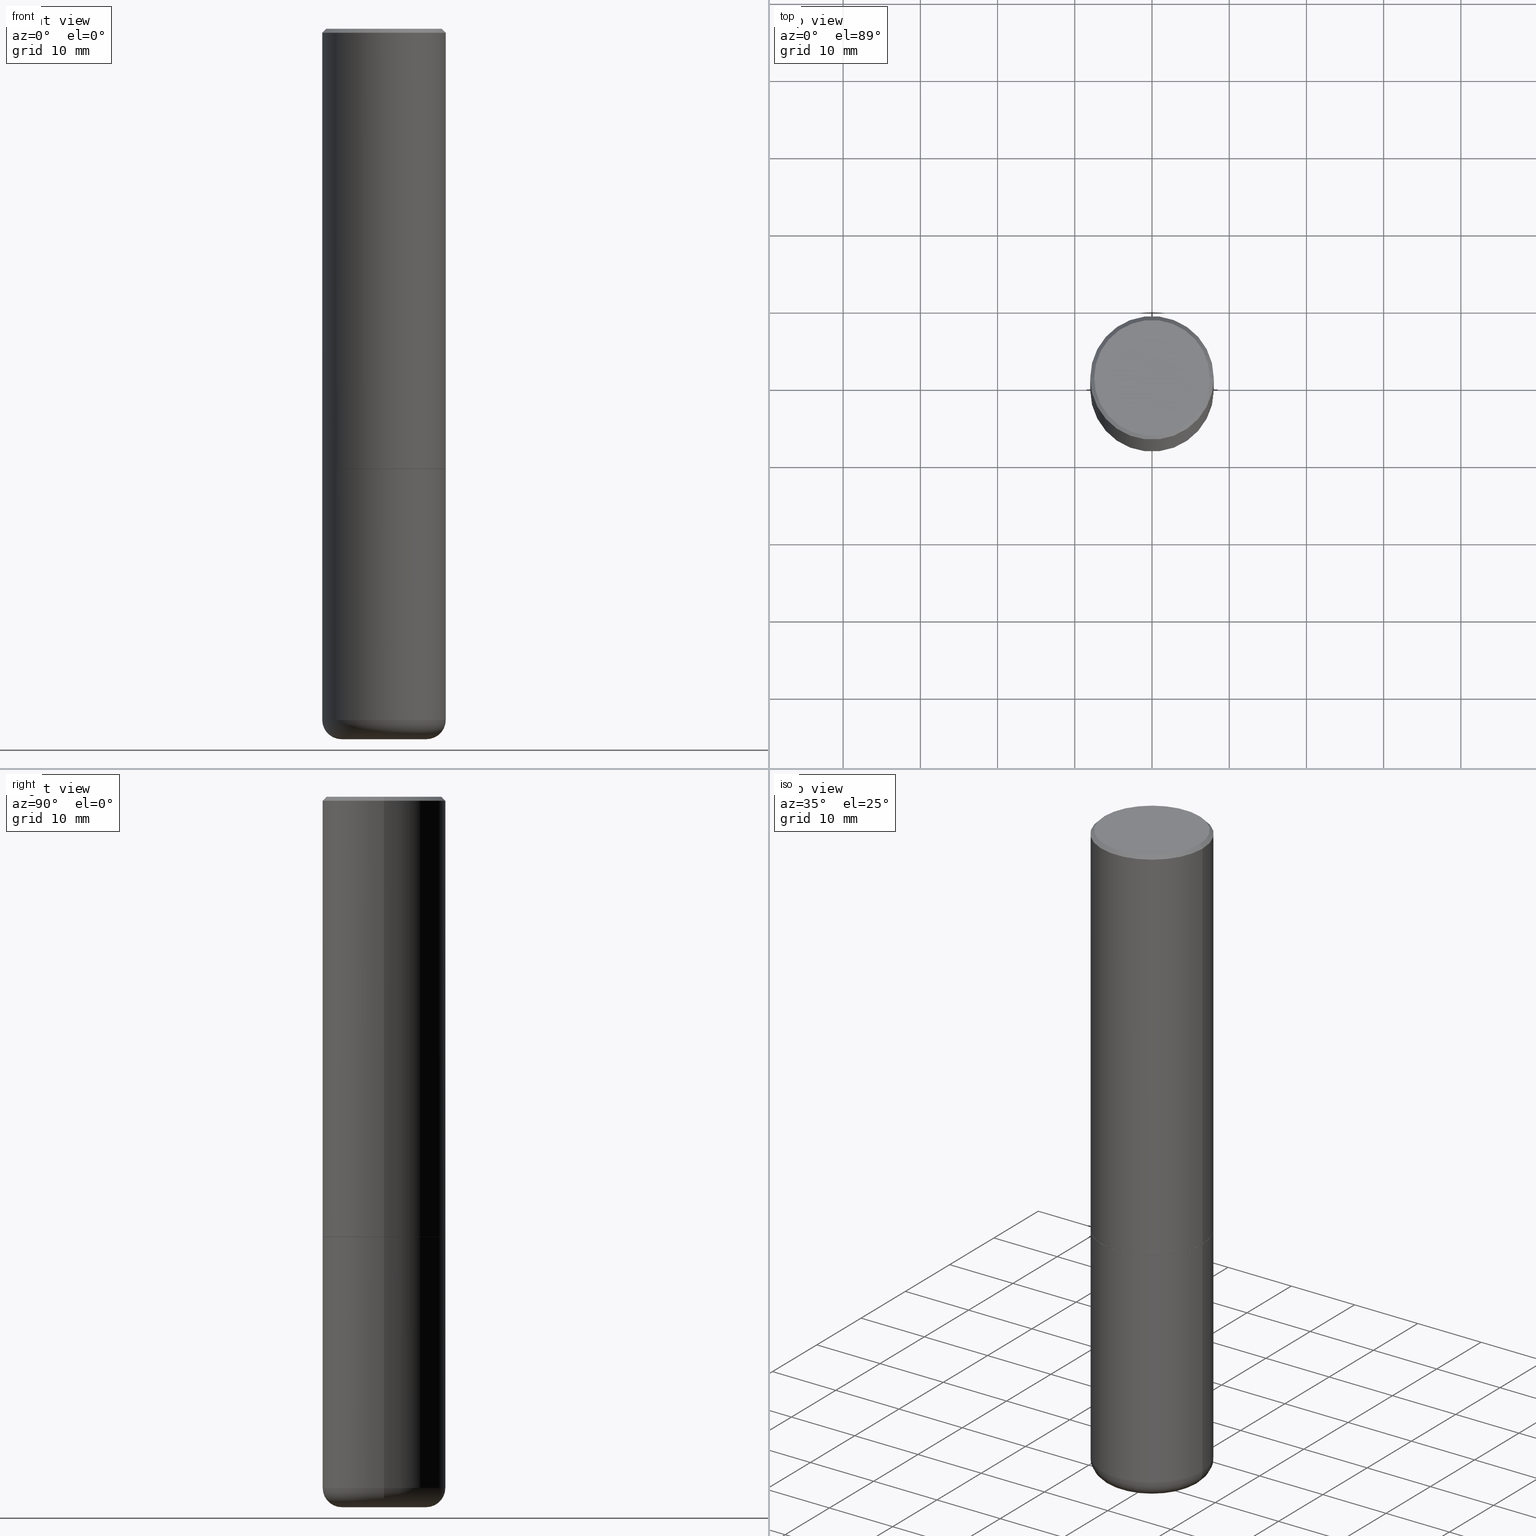
[diagram: canonical four-view strip — front | top / right | iso, engineering-drawing reading convention]
A machine part, canonical four-view strip (front | top / right | iso — engineering-drawing reading convention). The complete STEP part file that produces these views, byte-faithful:
ISO-10303-21;
HEADER;
FILE_DESCRIPTION (( 'STEP AP203' ),
    '1' );
FILE_NAME ('47036.STEP',
    '2024-03-05T13:42:26',
    ( '' ),
    ( '' ),
    'SwSTEP 2.0',
    'SolidWorks 2023',
    '' );
FILE_SCHEMA (( 'CONFIG_CONTROL_DESIGN' ));
ENDSEC;

DATA;
#1 = APPROVAL_DATE_TIME ( #384, #109 ) ;
#2 = CARTESIAN_POINT ( 'NONE',  ( 5.487632001079445967E-29, -7.834884124364017250E-15, -2.243999999999999773 ) ) ;
#3 = ORIENTED_EDGE ( 'NONE', *, *, #69, .T. ) ;
#4 = CYLINDRICAL_SURFACE ( 'NONE', #30, 0.3149500000000001743 ) ;
#5 = CC_DESIGN_APPROVAL ( #19, ( #74 ) ) ;
#6 = VERTEX_POINT ( 'NONE', #367 ) ;
#7 = EDGE_CURVE ( 'NONE', #135, #95, #248, .T. ) ;
#8 = CARTESIAN_POINT ( 'NONE',  ( -0.3149500000000002853, -1.712756788624580222E-15, -2.242999999999999883 ) ) ;
#9 = LINE ( 'NONE', #139, #37 ) ;
#10 = AXIS2_PLACEMENT_3D ( 'NONE', #270, #41, #399 ) ;
#11 = LINE ( 'NONE', #16, #191 ) ;
#12 = SECURITY_CLASSIFICATION ( '', '', #340 ) ;
#13 = DIMENSIONAL_EXPONENTS ( 1.000000000000000000, 0.000000000000000000, 0.000000000000000000, 0.000000000000000000, 0.000000000000000000, 0.000000000000000000, 0.000000000000000000 ) ;
#14 = DIRECTION ( 'NONE',  ( -0.7071067811865466846, 2.468850131082247989E-15, -0.7071067811865483499 ) ) ;
#15 = ADVANCED_FACE ( 'NONE', ( #47 ), #271, .T. ) ;
#16 = CARTESIAN_POINT ( 'NONE',  ( -0.3149500000000001743, 2.237854346276436774E-15, -1.549218606675783237E-29 ) ) ;
#17 = AXIS2_PLACEMENT_3D ( 'NONE', #417, #57, #281 ) ;
#18 = PERSON_AND_ORGANIZATION_ROLE ( 'creator' ) ;
#19 = APPROVAL ( #216, 'UNSPECIFIED' ) ;
#20 = DIRECTION ( 'NONE',  ( 7.105427357601001859E-15, 1.000000000000000000, -3.491481338843145583E-15 ) ) ;
#21 = FACE_OUTER_BOUND ( 'NONE', #100, .T. ) ;
#22 = CONICAL_SURFACE ( 'NONE', #304, 0.3149500000000000077, 0.7853981633974471688 ) ;
#23 = CALENDAR_DATE ( 2024, 5, 3 ) ;
#24 = DIRECTION ( 'NONE',  ( -1.000000000000000000, 6.982962677686266711E-15, 0.000000000000000000 ) ) ;
#25 = PRODUCT_DEFINITION ( 'UNKNOWN', '', #74, #290 ) ;
#26 = DIRECTION ( 'NONE',  ( -6.982962677686266711E-15, -1.000000000000000000, 3.491481338843145583E-15 ) ) ;
#27 = EDGE_CURVE ( 'NONE', #92, #287, #11, .T. ) ;
#28 = DIRECTION ( 'NONE',  ( 0.7071067811866199593, -2.468850131083015945E-15, 0.7071067811864750752 ) ) ;
#29 = VERTEX_POINT ( 'NONE', #208 ) ;
#30 = AXIS2_PLACEMENT_3D ( 'NONE', #229, #225, #353 ) ;
#31 = DIRECTION ( 'NONE',  ( -2.445468806185136597E-29, 3.491481338843145583E-15, 1.000000000000000000 ) ) ;
#32 = ORIENTED_EDGE ( 'NONE', *, *, #27, .T. ) ;
#33 = DIRECTION ( 'NONE',  ( -2.445468806185136877E-29, 3.491481338843145188E-15, 1.000000000000000000 ) ) ;
#34 = EDGE_LOOP ( 'NONE', ( #90, #368, #381, #157 ) ) ;
#35 = CARTESIAN_POINT ( 'NONE',  ( -0.3149500000000000077, 2.129454468560426573E-15, -0.02000000000000006981 ) ) ;
#36 = ORIENTED_EDGE ( 'NONE', *, *, #300, .T. ) ;
#37 = VECTOR ( 'NONE', #176, 39.37007874015748143 ) ;
#38 = AXIS2_PLACEMENT_3D ( 'NONE', #155, #189, #165 ) ;
#39 = ORIENTED_EDGE ( 'NONE', *, *, #293, .F. ) ;
#40 = ORIENTED_EDGE ( 'NONE', *, *, #282, .F. ) ;
#41 = DIRECTION ( 'NONE',  ( -2.445468806185136597E-29, 3.491481338843145583E-15, 1.000000000000000000 ) ) ;
#42 = VECTOR ( 'NONE', #221, 39.37007874015748143 ) ;
#43 = CARTESIAN_POINT ( 'NONE',  ( -0.3149500000000000077, 2.129454468560426573E-15, -0.02000000000000006981 ) ) ;
#44 = CIRCLE ( 'NONE', #364, 0.09839999999999986258 ) ;
#45 = ORIENTED_EDGE ( 'NONE', *, *, #363, .F. ) ;
#46 = ADVANCED_FACE ( 'NONE', ( #206 ), #22, .T. ) ;
#47 = FACE_OUTER_BOUND ( 'NONE', #262, .T. ) ;
#48 = PRODUCT ( '47036', '47036', '', ( #88 ) ) ;
#49 = CARTESIAN_POINT ( 'NONE',  ( 5.487632001079445967E-29, -7.834884124364017250E-15, -2.243999999999999773 ) ) ;
#50 = ORGANIZATION ( 'UNSPECIFIED', 'UNSPECIFIED', '' ) ;
#51 = PERSON_AND_ORGANIZATION_ROLE ( 'classification_officer' ) ;
#52 = CARTESIAN_POINT ( 'NONE',  ( -0.3139500000000000068, -5.604135205445183851E-15, -2.243999999999999773 ) ) ;
#53 = LINE ( 'NONE', #52, #42 ) ;
#54 = CALENDAR_DATE ( 2024, 5, 3 ) ;
#55 = CIRCLE ( 'NONE', #140, 0.3149500000000000077 ) ;
#56 = DIRECTION ( 'NONE',  ( -1.000000000000000000, 6.982962677686265922E-15, -4.876176775795935793E-29 ) ) ;
#57 = DIRECTION ( 'NONE',  ( -2.445468806185136597E-29, 3.491481338843145583E-15, 1.000000000000000000 ) ) ;
#58 = CC_DESIGN_PERSON_AND_ORGANIZATION_ASSIGNMENT ( #231, #199, ( #25 ) ) ;
#59 = PERSON_AND_ORGANIZATION ( #407, #50 ) ;
#60 = DIRECTION ( 'NONE',  ( 1.000000000000000000, -6.982962677686265922E-15, 4.876176775795935232E-29 ) ) ;
#61 = ORIENTED_EDGE ( 'NONE', *, *, #363, .T. ) ;
#62 = VECTOR ( 'NONE', #33, 39.37007874015748143 ) ;
#63 = ORIENTED_EDGE ( 'NONE', *, *, #27, .F. ) ;
#64 = CARTESIAN_POINT ( 'NONE',  ( 0.000000000000000000, 0.000000000000000000, 0.000000000000000000 ) ) ;
#65 = ORIENTED_EDGE ( 'NONE', *, *, #362, .T. ) ;
#66 = EDGE_LOOP ( 'NONE', ( #396, #40 ) ) ;
#67 = VECTOR ( 'NONE', #79, 39.37007874015748143 ) ;
#68 = CARTESIAN_POINT ( 'NONE',  ( 0.3149500000000002853, -1.003067673836246727E-14, -2.242999999999999883 ) ) ;
#69 = EDGE_CURVE ( 'NONE', #361, #287, #226, .T. ) ;
#70 = ORIENTED_EDGE ( 'NONE', *, *, #404, .T. ) ;
#71 = DIRECTION ( 'NONE',  ( 1.000000000000000000, -6.982962677686266711E-15, 0.000000000000000000 ) ) ;
#72 = CIRCLE ( 'NONE', #403, 0.3149500000000002853 ) ;
#73 = ORIENTED_EDGE ( 'NONE', *, *, #405, .F. ) ;
#74 = PRODUCT_DEFINITION_FORMATION_WITH_SPECIFIED_SOURCE ( 'ANY', '', #48, .NOT_KNOWN. ) ;
#75 = PRODUCT_RELATED_PRODUCT_CATEGORY ( 'detail', '', ( #48 ) ) ;
#76 = ORIENTED_EDGE ( 'NONE', *, *, #197, .T. ) ;
#77 = LINE ( 'NONE', #385, #389 ) ;
#78 = CARTESIAN_POINT ( 'NONE',  ( 4.890937612370289799E-31, -6.982962677686315028E-17, -0.02000000000000006981 ) ) ;
#79 = DIRECTION ( 'NONE',  ( 0.7071067811865466846, -7.319954787623252890E-15, -0.7071067811865483499 ) ) ;
#80 = APPROVAL_PERSON_ORGANIZATION ( #81, #19, #179 ) ;
#81 = PERSON_AND_ORGANIZATION ( #407, #50 ) ;
#82 = DIRECTION ( 'NONE',  ( 1.000000000000000000, -6.982962677686266711E-15, 0.000000000000000000 ) ) ;
#83 = APPLICATION_CONTEXT ( 'configuration controlled 3d designs of mechanical parts and assemblies' ) ;
#84 = PERSON_AND_ORGANIZATION ( #407, #50 ) ;
#85 = EDGE_CURVE ( 'NONE', #6, #230, #9, .T. ) ;
#86 = AXIS2_PLACEMENT_3D ( 'NONE', #283, #318, #415 ) ;
#87 = CARTESIAN_POINT ( 'NONE',  ( 5.487632001079445967E-29, -7.834884124364017250E-15, -2.243999999999999773 ) ) ;
#88 = MECHANICAL_CONTEXT ( 'NONE', #83, 'mechanical' ) ;
#89 = DIRECTION ( 'NONE',  ( 1.000000000000000000, -6.982962677686266711E-15, 4.883557194083112901E-29 ) ) ;
#90 = ORIENTED_EDGE ( 'NONE', *, *, #212, .F. ) ;
#91 = FACE_OUTER_BOUND ( 'NONE', #350, .T. ) ;
#92 = VERTEX_POINT ( 'NONE', #8 ) ;
#93 = CIRCLE ( 'NONE', #17, 0.2949499999999998234 ) ;
#94 = DIRECTION ( 'NONE',  ( -2.445468806185136597E-29, 3.491481338843145583E-15, 1.000000000000000000 ) ) ;
#95 = VERTEX_POINT ( 'NONE', #137 ) ;
#96 = CARTESIAN_POINT ( 'NONE',  ( 0.000000000000000000, 0.000000000000000000, 0.000000000000000000 ) ) ;
#97 =( CONVERSION_BASED_UNIT ( 'INCH', #181 ) LENGTH_UNIT ( ) NAMED_UNIT ( #13 ) );
#98 = APPLICATION_CONTEXT ( 'configuration controlled 3d designs of mechanical parts and assemblies' ) ;
#99 = CARTESIAN_POINT ( 'NONE',  ( 5.487632001079445967E-29, -7.834884124364017250E-15, -2.243999999999999773 ) ) ;
#100 = EDGE_LOOP ( 'NONE', ( #70, #32, #328, #45 ) ) ;
#101 = CALENDAR_DATE ( 2024, 5, 3 ) ;
#102 = CARTESIAN_POINT ( 'NONE',  ( -4.384175940207923203E-45, 6.259441315597878405E-31, 1.792775245842172799E-16 ) ) ;
#103 = LOCAL_TIME ( 8, 42, 26.00000000000000000, #266 ) ;
#104 = ORIENTED_EDGE ( 'NONE', *, *, #295, .F. ) ;
#105 = MANIFOLD_SOLID_BREP ( 'Body-Move/Copy2[1]', #166 ) ;
#106 = VERTEX_POINT ( 'NONE', #394 ) ;
#107 = ADVANCED_FACE ( 'NONE', ( #236 ), #297, .T. ) ;
#108 = VERTEX_POINT ( 'NONE', #68 ) ;
#109 = APPROVAL ( #162, 'UNSPECIFIED' ) ;
#110 = AXIS2_PLACEMENT_3D ( 'NONE', #401, #205, #141 ) ;
#111 = PERSON_AND_ORGANIZATION_ROLE ( 'design_supplier' ) ;
#112 = DIRECTION ( 'NONE',  ( -2.445468806185136597E-29, 3.491481338843145583E-15, 1.000000000000000000 ) ) ;
#113 = DIRECTION ( 'NONE',  ( 2.445468806185136597E-29, -3.491481338843145583E-15, -1.000000000000000000 ) ) ;
#114 = AXIS2_PLACEMENT_3D ( 'NONE', #171, #242, #71 ) ;
#115 = LOCAL_TIME ( 8, 42, 26.00000000000000000, #409 ) ;
#116 = EDGE_CURVE ( 'NONE', #106, #230, #213, .T. ) ;
#117 = APPROVAL_STATUS ( 'not_yet_approved' ) ;
#118 = CARTESIAN_POINT ( 'NONE',  ( 5.487632001079445967E-29, -7.834884124364017250E-15, -2.243999999999999773 ) ) ;
#119 =( LENGTH_UNIT ( ) NAMED_UNIT ( * ) SI_UNIT ( $, .METRE. ) );
#120 = DATE_AND_TIME ( #413, #311 ) ;
#121 = CYLINDRICAL_SURFACE ( 'NONE', #263, 0.3149500000000000077 ) ;
#122 = DIRECTION ( 'NONE',  ( 1.000000000000000000, -6.982962677686266711E-15, 0.000000000000000000 ) ) ;
#123 = ORIENTED_EDGE ( 'NONE', *, *, #295, .T. ) ;
#124 = CONICAL_SURFACE ( 'NONE', #202, 0.3139500000000000068, 0.7853981633975507526 ) ;
#125 = FACE_OUTER_BOUND ( 'NONE', #243, .T. ) ;
#126 = ORIENTED_EDGE ( 'NONE', *, *, #85, .T. ) ;
#127 = APPROVAL_ROLE ( '' ) ;
#128 = ORIENTED_EDGE ( 'NONE', *, *, #293, .T. ) ;
#129 = EDGE_CURVE ( 'NONE', #135, #287, #334, .T. ) ;
#130 = FACE_OUTER_BOUND ( 'NONE', #321, .T. ) ;
#131 = ORIENTED_EDGE ( 'NONE', *, *, #138, .F. ) ;
#132 = AXIS2_PLACEMENT_3D ( 'NONE', #49, #177, #147 ) ;
#133 = TOROIDAL_SURFACE ( 'NONE', #292, 0.2165500000000000203, 0.09839999999999984870 ) ;
#134 = DIRECTION ( 'NONE',  ( 1.000000000000000000, -6.982962677686264344E-15, 0.000000000000000000 ) ) ;
#135 = VERTEX_POINT ( 'NONE', #400 ) ;
#136 = CALENDAR_DATE ( 2024, 5, 3 ) ;
#137 = CARTESIAN_POINT ( 'NONE',  ( 0.2949499999999998234, -2.127023677808859286E-15, 1.792775245842319231E-16 ) ) ;
#138 = EDGE_CURVE ( 'NONE', #287, #361, #172, .T. ) ;
#139 = CARTESIAN_POINT ( 'NONE',  ( 0.3149500000000000077, -2.199284095337289871E-15, 1.535751875536930130E-29 ) ) ;
#140 = AXIS2_PLACEMENT_3D ( 'NONE', #87, #386, #122 ) ;
#141 = DIRECTION ( 'NONE',  ( -1.000000000000000000, 6.982962677686265922E-15, -4.876176775795935793E-29 ) ) ;
#142 = ADVANCED_BREP_SHAPE_REPRESENTATION ( '47036', ( #105, #238, #178 ), #207 ) ;
#143 = DIRECTION ( 'NONE',  ( -1.000000000000000000, 6.982962677686266711E-15, 0.000000000000000000 ) ) ;
#144 = AXIS2_PLACEMENT_3D ( 'NONE', #78, #211, #82 ) ;
#145 = CIRCLE ( 'NONE', #323, 0.3139500000000000068 ) ;
#146 = EDGE_CURVE ( 'NONE', #29, #92, #53, .T. ) ;
#147 = DIRECTION ( 'NONE',  ( 1.000000000000000000, -6.982962677686264344E-15, 0.000000000000000000 ) ) ;
#148 = CARTESIAN_POINT ( 'NONE',  ( 0.3149500000000000077, -1.003416821970130712E-14, -2.243999999999999773 ) ) ;
#149 = PERSON_AND_ORGANIZATION ( #407, #50 ) ;
#150 = CARTESIAN_POINT ( 'NONE',  ( 0.3149500000000000077, -2.230543471175007450E-15, -0.02000000000000006981 ) ) ;
#151 = AXIS2_PLACEMENT_3D ( 'NONE', #372, #20, #375 ) ;
#152 = CARTESIAN_POINT ( 'NONE',  ( -0.2165500000000000203, -1.058609720713632398E-14, -3.621999999999999442 ) ) ;
#153 = ADVANCED_FACE ( 'NONE', ( #378 ), #217, .F. ) ;
#154 = DATE_AND_TIME ( #54, #115 ) ;
#155 = CARTESIAN_POINT ( 'NONE',  ( 8.616853885473946211E-29, -1.230258364554770589E-14, -3.523599999999999621 ) ) ;
#156 = CARTESIAN_POINT ( 'NONE',  ( 0.3149500000000001743, -2.199284095337290660E-15, 1.535751875536930690E-29 ) ) ;
#157 = ORIENTED_EDGE ( 'NONE', *, *, #138, .T. ) ;
#158 = AXIS2_PLACEMENT_3D ( 'NONE', #408, #113, #24 ) ;
#159 = APPLICATION_PROTOCOL_DEFINITION ( 'international standard', 'config_control_design', 1994, #98 ) ;
#160 = CARTESIAN_POINT ( 'NONE',  ( 5.487632001079445967E-29, -7.834884124364017250E-15, -2.243999999999999773 ) ) ;
#161 = ORIENTED_EDGE ( 'NONE', *, *, #210, .F. ) ;
#162 = APPROVAL_STATUS ( 'not_yet_approved' ) ;
#163 = DIRECTION ( 'NONE',  ( 2.438088387897960049E-29, -3.491481338843145188E-15, -1.000000000000000000 ) ) ;
#164 = ORIENTED_EDGE ( 'NONE', *, *, #192, .T. ) ;
#165 = DIRECTION ( 'NONE',  ( 1.000000000000000000, -6.982962677686269866E-15, 0.000000000000000000 ) ) ;
#166 = CLOSED_SHELL ( 'NONE', ( #168, #319, #377, #356, #107, #15 ) ) ;
#167 = AXIS2_PLACEMENT_3D ( 'NONE', #99, #163, #233 ) ;
#168 = ADVANCED_FACE ( 'NONE', ( #371 ), #121, .T. ) ;
#169 = ORIENTED_EDGE ( 'NONE', *, *, #404, .F. ) ;
#170 = ORIENTED_EDGE ( 'NONE', *, *, #411, .F. ) ;
#171 = CARTESIAN_POINT ( 'NONE',  ( 5.487632001079445967E-29, -7.834884124364017250E-15, -2.243999999999999773 ) ) ;
#172 = CIRCLE ( 'NONE', #144, 0.3149500000000000077 ) ;
#173 = ADVANCED_FACE ( 'NONE', ( #338 ), #312, .T. ) ;
#174 = DIRECTION ( 'NONE',  ( -2.445468806185136597E-29, 3.491481338843145583E-15, 1.000000000000000000 ) ) ;
#175 = VERTEX_POINT ( 'NONE', #152 ) ;
#176 = DIRECTION ( 'NONE',  ( -2.445468806185136877E-29, 3.491481338843145188E-15, 1.000000000000000000 ) ) ;
#177 = DIRECTION ( 'NONE',  ( -2.445468806185136597E-29, 3.491481338843145583E-15, 1.000000000000000000 ) ) ;
#178 = AXIS2_PLACEMENT_3D ( 'NONE', #96, #195, #222 ) ;
#179 = APPROVAL_ROLE ( '' ) ;
#180 = DIRECTION ( 'NONE',  ( 1.000000000000000000, -6.982962677686266711E-15, 4.876176775795936353E-29 ) ) ;
#181 = LENGTH_MEASURE_WITH_UNIT ( LENGTH_MEASURE( 0.02539999999999999897 ), #119 );
#182 = FACE_OUTER_BOUND ( 'NONE', #66, .T. ) ;
#183 = CARTESIAN_POINT ( 'NONE',  ( 8.616853885473946211E-29, -1.230258364554770589E-14, -3.523599999999999621 ) ) ;
#184 = CIRCLE ( 'NONE', #151, 0.09839999999999986258 ) ;
#185 =( NAMED_UNIT ( * ) SI_UNIT ( $, .STERADIAN. ) SOLID_ANGLE_UNIT ( ) );
#186 = CARTESIAN_POINT ( 'NONE',  ( -0.3149499999999999522, -1.006472929927126990E-14, -3.523599999999999621 ) ) ;
#187 = DIRECTION ( 'NONE',  ( 1.000000000000000000, -6.982962677686271444E-15, 0.000000000000000000 ) ) ;
#188 = ORIENTED_EDGE ( 'NONE', *, *, #146, .T. ) ;
#189 = DIRECTION ( 'NONE',  ( -2.445468806185136597E-29, 3.491481338843145583E-15, 1.000000000000000000 ) ) ;
#190 = ORIENTED_EDGE ( 'NONE', *, *, #282, .T. ) ;
#191 = VECTOR ( 'NONE', #267, 39.37007874015748143 ) ;
#192 = EDGE_CURVE ( 'NONE', #92, #108, #72, .T. ) ;
#193 = CARTESIAN_POINT ( 'NONE',  ( 0.3149500000000000077, -2.230543471175007450E-15, -0.02000000000000006981 ) ) ;
#194 = ORIENTED_EDGE ( 'NONE', *, *, #85, .F. ) ;
#195 = DIRECTION ( 'NONE',  ( 0.000000000000000000, 0.000000000000000000, 1.000000000000000000 ) ) ;
#196 = FACE_OUTER_BOUND ( 'NONE', #245, .T. ) ;
#197 = EDGE_CURVE ( 'NONE', #393, #6, #239, .T. ) ;
#198 = ORIENTED_EDGE ( 'NONE', *, *, #302, .T. ) ;
#199 = PERSON_AND_ORGANIZATION_ROLE ( 'creator' ) ;
#200 = ORIENTED_EDGE ( 'NONE', *, *, #129, .F. ) ;
#201 = CC_DESIGN_PERSON_AND_ORGANIZATION_ASSIGNMENT ( #59, #359, ( #48 ) ) ;
#202 = AXIS2_PLACEMENT_3D ( 'NONE', #388, #94, #326 ) ;
#203 = ORIENTED_EDGE ( 'NONE', *, *, #327, .F. ) ;
#204 = DATE_TIME_ROLE ( 'creation_date' ) ;
#205 = DIRECTION ( 'NONE',  ( 2.438088387897960049E-29, -3.491481338843145188E-15, -1.000000000000000000 ) ) ;
#206 = FACE_OUTER_BOUND ( 'NONE', #355, .T. ) ;
#207 =( GEOMETRIC_REPRESENTATION_CONTEXT ( 3 ) GLOBAL_UNCERTAINTY_ASSIGNED_CONTEXT ( ( #237 ) ) GLOBAL_UNIT_ASSIGNED_CONTEXT ( ( #97, #315, #185 ) ) REPRESENTATION_CONTEXT ( 'NONE', 'WORKASPACE' ) );
#208 = CARTESIAN_POINT ( 'NONE',  ( -0.3139500000000000068, -5.598836751096959871E-15, -2.243999999999999773 ) ) ;
#209 = CARTESIAN_POINT ( 'NONE',  ( 4.890937612370289799E-31, -6.982962677686315028E-17, -0.02000000000000006981 ) ) ;
#210 = EDGE_CURVE ( 'NONE', #175, #393, #184, .T. ) ;
#211 = DIRECTION ( 'NONE',  ( -2.445468806185136597E-29, 3.491481338843145583E-15, 1.000000000000000000 ) ) ;
#212 = EDGE_CURVE ( 'NONE', #95, #361, #316, .T. ) ;
#213 = CIRCLE ( 'NONE', #114, 0.3149500000000000077 ) ;
#214 = PLANE ( 'NONE',  #314 ) ;
#215 = AXIS2_PLACEMENT_3D ( 'NONE', #183, #112, #247 ) ;
#216 = APPROVAL_STATUS ( 'not_yet_approved' ) ;
#217 = PLANE ( 'NONE',  #277 ) ;
#218 = DIRECTION ( 'NONE',  ( 1.000000000000000000, -6.982962677686265922E-15, 4.876176775795935793E-29 ) ) ;
#219 = COORDINATED_UNIVERSAL_TIME_OFFSET ( 5, 0, .BEHIND. ) ;
#220 = CC_DESIGN_DATE_AND_TIME_ASSIGNMENT ( #235, #204, ( #25 ) ) ;
#221 = DIRECTION ( 'NONE',  ( -0.7071067811866199593, 7.493145998870616062E-15, 0.7071067811864750752 ) ) ;
#222 = DIRECTION ( 'NONE',  ( 1.000000000000000000, 0.000000000000000000, 0.000000000000000000 ) ) ;
#223 = DIRECTION ( 'NONE',  ( -2.445468806185136597E-29, 3.491481338843145583E-15, 1.000000000000000000 ) ) ;
#224 = EDGE_LOOP ( 'NONE', ( #269, #123 ) ) ;
#225 = DIRECTION ( 'NONE',  ( -2.445468806185136597E-29, 3.491481338843145583E-15, 1.000000000000000000 ) ) ;
#226 = CIRCLE ( 'NONE', #339, 0.3149500000000000077 ) ;
#227 = AXIS2_PLACEMENT_3D ( 'NONE', #255, #241, #366 ) ;
#228 = ADVANCED_FACE ( 'NONE', ( #182 ), #214, .F. ) ;
#229 = CARTESIAN_POINT ( 'NONE',  ( 0.000000000000000000, 0.000000000000000000, 0.000000000000000000 ) ) ;
#230 = VERTEX_POINT ( 'NONE', #148 ) ;
#231 = PERSON_AND_ORGANIZATION ( #407, #50 ) ;
#232 = ADVANCED_FACE ( 'NONE', ( #345 ), #410, .T. ) ;
#233 = DIRECTION ( 'NONE',  ( -1.000000000000000000, 6.982962677686265922E-15, -4.876176775795935793E-29 ) ) ;
#234 = ORIENTED_EDGE ( 'NONE', *, *, #116, .F. ) ;
#235 = DATE_AND_TIME ( #101, #103 ) ;
#236 = FACE_OUTER_BOUND ( 'NONE', #253, .T. ) ;
#237 = UNCERTAINTY_MEASURE_WITH_UNIT (LENGTH_MEASURE( 1.000000000000000082E-05 ), #97, 'distance_accuracy_value', 'NONE');
#238 = MANIFOLD_SOLID_BREP ( 'Body-Move/Copy2[2]', #330 ) ;
#239 = CIRCLE ( 'NONE', #215, 0.3149500000000000077 ) ;
#240 = DIRECTION ( 'NONE',  ( 1.000000000000000000, -6.982962677686267499E-15, 4.874125435057324435E-29 ) ) ;
#241 = DIRECTION ( 'NONE',  ( -2.445468806185136597E-29, 3.491481338843145583E-15, 1.000000000000000000 ) ) ;
#242 = DIRECTION ( 'NONE',  ( -2.445468806185136597E-29, 3.491481338843145583E-15, 1.000000000000000000 ) ) ;
#243 = EDGE_LOOP ( 'NONE', ( #170, #76, #126, #234 ) ) ;
#244 = AXIS2_PLACEMENT_3D ( 'NONE', #349, #31, #60 ) ;
#245 = EDGE_LOOP ( 'NONE', ( #336, #358 ) ) ;
#246 = DIRECTION ( 'NONE',  ( 2.438088387897960049E-29, -3.491481338843145188E-15, -1.000000000000000000 ) ) ;
#247 = DIRECTION ( 'NONE',  ( 1.000000000000000000, -6.982962677686269866E-15, 0.000000000000000000 ) ) ;
#248 = CIRCLE ( 'NONE', #402, 0.2949499999999998234 ) ;
#249 = CIRCLE ( 'NONE', #335, 0.3139500000000000068 ) ;
#250 = APPROVAL ( #117, 'UNSPECIFIED' ) ;
#251 = DIRECTION ( 'NONE',  ( -2.445468806185136597E-29, 3.491481338843145583E-15, 1.000000000000000000 ) ) ;
#252 = DIRECTION ( 'NONE',  ( -2.445468806185136597E-29, 3.491481338843145583E-15, 1.000000000000000000 ) ) ;
#253 = EDGE_LOOP ( 'NONE', ( #161, #289, #36, #301 ) ) ;
#254 = APPLICATION_PROTOCOL_DEFINITION ( 'international standard', 'config_control_design', 1994, #83 ) ;
#255 = CARTESIAN_POINT ( 'NONE',  ( 8.857488016002563354E-29, -1.264614540928987041E-14, -3.621999999999999442 ) ) ;
#256 = CC_DESIGN_DATE_AND_TIME_ASSIGNMENT ( #154, #306, ( #12 ) ) ;
#257 = VERTEX_POINT ( 'NONE', #310 ) ;
#258 = COORDINATED_UNIVERSAL_TIME_OFFSET ( 5, 0, .BEHIND. ) ;
#259 = DIRECTION ( 'NONE',  ( 1.000000000000000000, -6.982962677686264344E-15, 0.000000000000000000 ) ) ;
#260 = ORIENTED_EDGE ( 'NONE', *, *, #210, .T. ) ;
#261 = PLANE ( 'NONE',  #167 ) ;
#262 = EDGE_LOOP ( 'NONE', ( #331, #73 ) ) ;
#263 = AXIS2_PLACEMENT_3D ( 'NONE', #307, #343, #180 ) ;
#264 = AXIS2_PLACEMENT_3D ( 'NONE', #351, #382, #357 ) ;
#265 = DIRECTION ( 'NONE',  ( -2.445468806185136597E-29, 3.491481338843145583E-15, 1.000000000000000000 ) ) ;
#266 = COORDINATED_UNIVERSAL_TIME_OFFSET ( 5, 0, .BEHIND. ) ;
#267 = DIRECTION ( 'NONE',  ( -2.445468806185136877E-29, 3.491481338843145188E-15, 1.000000000000000000 ) ) ;
#268 = APPROVAL_PERSON_ORGANIZATION ( #285, #109, #127 ) ;
#269 = ORIENTED_EDGE ( 'NONE', *, *, #7, .T. ) ;
#270 = CARTESIAN_POINT ( 'NONE',  ( 8.616853885473946211E-29, -1.230258364554770589E-14, -3.523599999999999621 ) ) ;
#271 = PLANE ( 'NONE',  #110 ) ;
#272 = CC_DESIGN_APPROVAL ( #250, ( #12 ) ) ;
#273 = ADVANCED_FACE ( 'NONE', ( #21 ), #280, .T. ) ;
#274 = CIRCLE ( 'NONE', #86, 0.3149500000000002853 ) ;
#275 = CARTESIAN_POINT ( 'NONE',  ( 5.485186532273261485E-29, -7.831392643025175821E-15, -2.242999999999999883 ) ) ;
#276 = PERSON_AND_ORGANIZATION ( #407, #50 ) ;
#277 = AXIS2_PLACEMENT_3D ( 'NONE', #348, #246, #56 ) ;
#278 = VECTOR ( 'NONE', #28, 39.37007874015748143 ) ;
#279 = EDGE_CURVE ( 'NONE', #257, #175, #374, .T. ) ;
#280 = CYLINDRICAL_SURFACE ( 'NONE', #244, 0.3149500000000001743 ) ;
#281 = DIRECTION ( 'NONE',  ( 1.000000000000000000, -6.982962677686267499E-15, 4.874125435057324435E-29 ) ) ;
#282 = EDGE_CURVE ( 'NONE', #29, #416, #145, .T. ) ;
#283 = CARTESIAN_POINT ( 'NONE',  ( 5.485186532273261485E-29, -7.831392643025175821E-15, -2.242999999999999883 ) ) ;
#284 = LOCAL_TIME ( 8, 42, 26.00000000000000000, #258 ) ;
#285 = PERSON_AND_ORGANIZATION ( #407, #50 ) ;
#286 = CARTESIAN_POINT ( 'NONE',  ( 8.616853885473946211E-29, -1.230258364554770589E-14, -3.523599999999999621 ) ) ;
#287 = VERTEX_POINT ( 'NONE', #35 ) ;
#288 = FACE_OUTER_BOUND ( 'NONE', #296, .T. ) ;
#289 = ORIENTED_EDGE ( 'NONE', *, *, #405, .T. ) ;
#290 = DESIGN_CONTEXT ( 'detailed design', #98, 'design' ) ;
#291 = CARTESIAN_POINT ( 'NONE',  ( 0.3139500000000000068, -1.002718525702362111E-14, -2.243999999999999773 ) ) ;
#292 = AXIS2_PLACEMENT_3D ( 'NONE', #286, #265, #89 ) ;
#293 = EDGE_CURVE ( 'NONE', #6, #393, #305, .T. ) ;
#294 = EDGE_LOOP ( 'NONE', ( #128, #325, #203, #194 ) ) ;
#295 = EDGE_CURVE ( 'NONE', #95, #135, #93, .T. ) ;
#296 = EDGE_LOOP ( 'NONE', ( #198, #188, #169, #352 ) ) ;
#297 = TOROIDAL_SURFACE ( 'NONE', #10, 0.2165500000000000203, 0.09839999999999984870 ) ;
#298 = CC_DESIGN_APPROVAL ( #109, ( #25 ) ) ;
#299 = DIRECTION ( 'NONE',  ( 1.000000000000000000, -6.982962677686266711E-15, 0.000000000000000000 ) ) ;
#300 = EDGE_CURVE ( 'NONE', #257, #6, #44, .T. ) ;
#301 = ORIENTED_EDGE ( 'NONE', *, *, #197, .F. ) ;
#302 = EDGE_CURVE ( 'NONE', #416, #29, #249, .T. ) ;
#303 = SHAPE_DEFINITION_REPRESENTATION ( #313, #142 ) ;
#304 = AXIS2_PLACEMENT_3D ( 'NONE', #209, #337, #143 ) ;
#305 = CIRCLE ( 'NONE', #38, 0.3149500000000000077 ) ;
#306 = DATE_TIME_ROLE ( 'classification_date' ) ;
#307 = CARTESIAN_POINT ( 'NONE',  ( 0.000000000000000000, 0.000000000000000000, 0.000000000000000000 ) ) ;
#308 = DATE_AND_TIME ( #23, #369 ) ;
#309 = CC_DESIGN_PERSON_AND_ORGANIZATION_ASSIGNMENT ( #149, #18, ( #74 ) ) ;
#310 = CARTESIAN_POINT ( 'NONE',  ( 0.2165500000000000203, -1.415830597714283123E-14, -3.621999999999999442 ) ) ;
#311 = LOCAL_TIME ( 8, 42, 26.00000000000000000, #376 ) ;
#312 = CONICAL_SURFACE ( 'NONE', #132, 0.3139500000000000068, 0.7853981633975507526 ) ;
#313 = PRODUCT_DEFINITION_SHAPE ( 'NONE', 'NONE',  #25 ) ;
#314 = AXIS2_PLACEMENT_3D ( 'NONE', #118, #341, #218 ) ;
#315 =( NAMED_UNIT ( * ) PLANE_ANGLE_UNIT ( ) SI_UNIT ( $, .RADIAN. ) );
#316 = LINE ( 'NONE', #150, #67 ) ;
#317 = APPROVAL_ROLE ( '' ) ;
#318 = DIRECTION ( 'NONE',  ( -2.445468806185136597E-29, 3.491481338843145583E-15, 1.000000000000000000 ) ) ;
#319 = ADVANCED_FACE ( 'NONE', ( #130 ), #133, .T. ) ;
#320 = LINE ( 'NONE', #291, #278 ) ;
#321 = EDGE_LOOP ( 'NONE', ( #387, #260, #39, #418 ) ) ;
#322 = DIRECTION ( 'NONE',  ( -2.445468806185136597E-29, 3.491481338843145583E-15, 1.000000000000000000 ) ) ;
#323 = AXIS2_PLACEMENT_3D ( 'NONE', #2, #223, #259 ) ;
#324 = LINE ( 'NONE', #156, #62 ) ;
#325 = ORIENTED_EDGE ( 'NONE', *, *, #411, .T. ) ;
#326 = DIRECTION ( 'NONE',  ( 1.000000000000000000, -6.982962677686264344E-15, 0.000000000000000000 ) ) ;
#327 = EDGE_CURVE ( 'NONE', #230, #106, #55, .T. ) ;
#328 = ORIENTED_EDGE ( 'NONE', *, *, #69, .F. ) ;
#329 = ORIENTED_EDGE ( 'NONE', *, *, #212, .T. ) ;
#330 = CLOSED_SHELL ( 'NONE', ( #391, #273, #46, #232, #344, #173, #228, #153 ) ) ;
#331 = ORIENTED_EDGE ( 'NONE', *, *, #279, .F. ) ;
#332 = CC_DESIGN_PERSON_AND_ORGANIZATION_ASSIGNMENT ( #276, #111, ( #74 ) ) ;
#333 = CARTESIAN_POINT ( 'NONE',  ( 4.890937612370289799E-31, -6.982962677686315028E-17, -0.02000000000000006981 ) ) ;
#334 = LINE ( 'NONE', #43, #395 ) ;
#335 = AXIS2_PLACEMENT_3D ( 'NONE', #160, #322, #134 ) ;
#336 = ORIENTED_EDGE ( 'NONE', *, *, #327, .T. ) ;
#337 = DIRECTION ( 'NONE',  ( 2.445468806185136597E-29, -3.491481338843145583E-15, -1.000000000000000000 ) ) ;
#338 = FACE_OUTER_BOUND ( 'NONE', #390, .T. ) ;
#339 = AXIS2_PLACEMENT_3D ( 'NONE', #333, #174, #299 ) ;
#340 = SECURITY_CLASSIFICATION_LEVEL ( 'unclassified' ) ;
#341 = DIRECTION ( 'NONE',  ( -2.438088387897960049E-29, 3.491481338843145188E-15, 1.000000000000000000 ) ) ;
#342 = APPROVAL_DATE_TIME ( #308, #19 ) ;
#343 = DIRECTION ( 'NONE',  ( -2.445468806185136597E-29, 3.491481338843145583E-15, 1.000000000000000000 ) ) ;
#344 = ADVANCED_FACE ( 'NONE', ( #91 ), #4, .T. ) ;
#345 = FACE_OUTER_BOUND ( 'NONE', #34, .T. ) ;
#346 = APPROVAL_DATE_TIME ( #120, #250 ) ;
#347 = CC_DESIGN_SECURITY_CLASSIFICATION ( #12, ( #74 ) ) ;
#348 = CARTESIAN_POINT ( 'NONE',  ( 2.059624841783562880E-15, 0.2949499999999998234, -9.401736585996764239E-16 ) ) ;
#349 = CARTESIAN_POINT ( 'NONE',  ( 0.000000000000000000, 0.000000000000000000, 0.000000000000000000 ) ) ;
#350 = EDGE_LOOP ( 'NONE', ( #63, #164, #61, #131 ) ) ;
#351 = CARTESIAN_POINT ( 'NONE',  ( 8.857488016002563354E-29, -1.264614540928987041E-14, -3.621999999999999442 ) ) ;
#352 = ORIENTED_EDGE ( 'NONE', *, *, #362, .F. ) ;
#353 = DIRECTION ( 'NONE',  ( 1.000000000000000000, -6.982962677686265922E-15, 4.876176775795935232E-29 ) ) ;
#354 = APPROVAL_PERSON_ORGANIZATION ( #412, #250, #317 ) ;
#355 = EDGE_LOOP ( 'NONE', ( #104, #329, #3, #200 ) ) ;
#356 = ADVANCED_FACE ( 'NONE', ( #125 ), #392, .T. ) ;
#357 = DIRECTION ( 'NONE',  ( 1.000000000000000000, -6.982962677686264344E-15, 0.000000000000000000 ) ) ;
#358 = ORIENTED_EDGE ( 'NONE', *, *, #116, .T. ) ;
#359 = PERSON_AND_ORGANIZATION_ROLE ( 'design_owner' ) ;
#360 = DIRECTION ( 'NONE',  ( 1.000000000000000000, -6.982962677686266711E-15, 4.876176775795936353E-29 ) ) ;
#361 = VERTEX_POINT ( 'NONE', #193 ) ;
#362 = EDGE_CURVE ( 'NONE', #416, #108, #320, .T. ) ;
#363 = EDGE_CURVE ( 'NONE', #108, #361, #324, .T. ) ;
#364 = AXIS2_PLACEMENT_3D ( 'NONE', #414, #26, #187 ) ;
#365 = DIRECTION ( 'NONE',  ( -2.445468806185136597E-29, 3.491481338843145583E-15, 1.000000000000000000 ) ) ;
#366 = DIRECTION ( 'NONE',  ( 1.000000000000000000, -6.982962677686264344E-15, 0.000000000000000000 ) ) ;
#367 = CARTESIAN_POINT ( 'NONE',  ( 0.3149499999999999522, -1.450186774088499734E-14, -3.523599999999999621 ) ) ;
#368 = ORIENTED_EDGE ( 'NONE', *, *, #7, .F. ) ;
#369 = LOCAL_TIME ( 8, 42, 26.00000000000000000, #219 ) ;
#370 = ORIENTED_EDGE ( 'NONE', *, *, #146, .F. ) ;
#371 = FACE_OUTER_BOUND ( 'NONE', #294, .T. ) ;
#372 = CARTESIAN_POINT ( 'NONE',  ( -0.2165500000000000203, -1.076390335125921037E-14, -3.523599999999999621 ) ) ;
#373 = CC_DESIGN_PERSON_AND_ORGANIZATION_ASSIGNMENT ( #84, #51, ( #12 ) ) ;
#374 = CIRCLE ( 'NONE', #264, 0.2165500000000000203 ) ;
#375 = DIRECTION ( 'NONE',  ( -1.000000000000000000, 7.105427357601009747E-15, 0.000000000000000000 ) ) ;
#376 = COORDINATED_UNIVERSAL_TIME_OFFSET ( 5, 0, .BEHIND. ) ;
#377 = ADVANCED_FACE ( 'NONE', ( #196 ), #261, .F. ) ;
#378 = FACE_OUTER_BOUND ( 'NONE', #224, .T. ) ;
#379 = CARTESIAN_POINT ( 'NONE',  ( 0.3139500000000000068, -1.002718525702362111E-14, -2.243999999999999773 ) ) ;
#380 = AXIS2_PLACEMENT_3D ( 'NONE', #64, #252, #360 ) ;
#381 = ORIENTED_EDGE ( 'NONE', *, *, #129, .T. ) ;
#382 = DIRECTION ( 'NONE',  ( -2.445468806185136597E-29, 3.491481338843145583E-15, 1.000000000000000000 ) ) ;
#383 = ORIENTED_EDGE ( 'NONE', *, *, #192, .F. ) ;
#384 = DATE_AND_TIME ( #136, #284 ) ;
#385 = CARTESIAN_POINT ( 'NONE',  ( -0.3149500000000000077, 2.237854346276435590E-15, -1.549218606675782676E-29 ) ) ;
#386 = DIRECTION ( 'NONE',  ( -2.445468806185136597E-29, 3.491481338843145583E-15, 1.000000000000000000 ) ) ;
#387 = ORIENTED_EDGE ( 'NONE', *, *, #279, .T. ) ;
#388 = CARTESIAN_POINT ( 'NONE',  ( 5.487632001079445967E-29, -7.834884124364017250E-15, -2.243999999999999773 ) ) ;
#389 = VECTOR ( 'NONE', #398, 39.37007874015748143 ) ;
#390 = EDGE_LOOP ( 'NONE', ( #370, #190, #65, #383 ) ) ;
#391 = ADVANCED_FACE ( 'NONE', ( #288 ), #124, .T. ) ;
#392 = CYLINDRICAL_SURFACE ( 'NONE', #380, 0.3149500000000000077 ) ;
#393 = VERTEX_POINT ( 'NONE', #186 ) ;
#394 = CARTESIAN_POINT ( 'NONE',  ( -0.3149500000000000077, -7.830879538679425584E-15, -2.243999999999999773 ) ) ;
#395 = VECTOR ( 'NONE', #14, 39.37007874015748143 ) ;
#396 = ORIENTED_EDGE ( 'NONE', *, *, #302, .F. ) ;
#397 = CIRCLE ( 'NONE', #227, 0.2165500000000000203 ) ;
#398 = DIRECTION ( 'NONE',  ( -2.445468806185136877E-29, 3.491481338843145188E-15, 1.000000000000000000 ) ) ;
#399 = DIRECTION ( 'NONE',  ( 1.000000000000000000, -6.982962677686266711E-15, 4.883557194083112901E-29 ) ) ;
#400 = CARTESIAN_POINT ( 'NONE',  ( -0.2949499999999998234, 2.094539655171995318E-15, 1.792775245842027353E-16 ) ) ;
#401 = CARTESIAN_POINT ( 'NONE',  ( 1.523889590590419512E-28, -3.507606103769704490E-15, -3.621999999999999886 ) ) ;
#402 = AXIS2_PLACEMENT_3D ( 'NONE', #102, #365, #240 ) ;
#403 = AXIS2_PLACEMENT_3D ( 'NONE', #275, #251, #406 ) ;
#404 = EDGE_CURVE ( 'NONE', #108, #92, #274, .T. ) ;
#405 = EDGE_CURVE ( 'NONE', #175, #257, #397, .T. ) ;
#406 = DIRECTION ( 'NONE',  ( 1.000000000000000000, -6.982962677686267499E-15, 0.000000000000000000 ) ) ;
#407 = PERSON ( 'UNSPECIFIED', 'UNSPECIFIED', 'UNSPECIFIED', ('UNSPECIFIED'), ('UNSPECIFIED'), ('UNSPECIFIED') ) ;
#408 = CARTESIAN_POINT ( 'NONE',  ( 4.890937612370289799E-31, -6.982962677686315028E-17, -0.02000000000000006981 ) ) ;
#409 = COORDINATED_UNIVERSAL_TIME_OFFSET ( 5, 0, .BEHIND. ) ;
#410 = CONICAL_SURFACE ( 'NONE', #158, 0.3149500000000000077, 0.7853981633974471688 ) ;
#411 = EDGE_CURVE ( 'NONE', #393, #106, #77, .T. ) ;
#412 = PERSON_AND_ORGANIZATION ( #407, #50 ) ;
#413 = CALENDAR_DATE ( 2024, 5, 3 ) ;
#414 = CARTESIAN_POINT ( 'NONE',  ( 0.2165500000000000203, -1.381474421340066671E-14, -3.523599999999999621 ) ) ;
#415 = DIRECTION ( 'NONE',  ( 1.000000000000000000, -6.982962677686267499E-15, 0.000000000000000000 ) ) ;
#416 = VERTEX_POINT ( 'NONE', #379 ) ;
#417 = CARTESIAN_POINT ( 'NONE',  ( -4.384175940207923203E-45, 6.259441315597878405E-31, 1.792775245842172799E-16 ) ) ;
#418 = ORIENTED_EDGE ( 'NONE', *, *, #300, .F. ) ;
ENDSEC;
END-ISO-10303-21;
